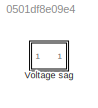
MODEL slx_0501df8e09e4
KIND model
CONFIG AbsTol = auto
CONFIG EnableMultiTasking = off
CONFIG FixedStep = auto
CONFIG MaxStep = auto
CONFIG MinStep = auto
CONFIG RelTol = 1e-3
CONFIG SampleTimeConstraint = Unconstrained
CONFIG SolverName = VariableStepAuto
CONFIG StartTime = 0.0
CONFIG StopTime = 10.0
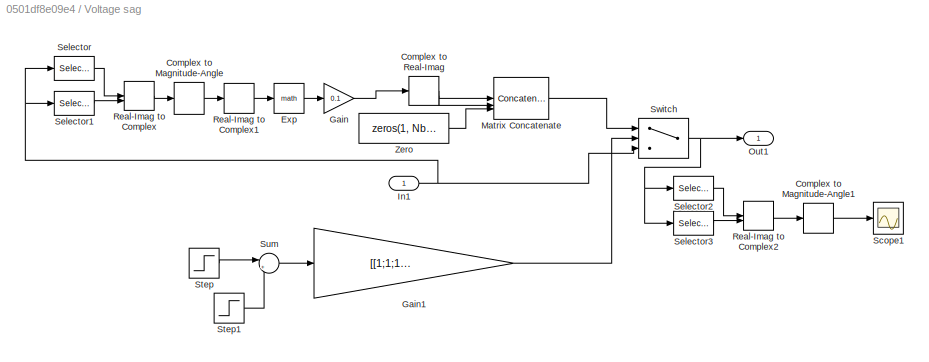
BLOCK [SubSystem] Voltage sag
BLOCK [ComplexToMagnitudeAngle] Voltage sag/Complex to Magnitude-Angle
  Output = Angle
BLOCK [ComplexToMagnitudeAngle] Voltage sag/Complex to Magnitude-Angle1
  Output = Magnitude
BLOCK [ComplexToRealImag] Voltage sag/Complex to Real-Imag
BLOCK [Math] Voltage sag/Exp
BLOCK [Gain] Voltage sag/Gain
  Gain = 0.1
BLOCK [Gain] Voltage sag/Gain1
  Gain = [[1;1;1] zeros(3, Nbuses-1)]
BLOCK [Inport] Voltage sag/In1
BLOCK [Concatenate] Voltage sag/Matrix Concatenate
  Mode = Multidimensional array
  NumInputs = 3
BLOCK [Outport] Voltage sag/Out1
BLOCK [RealImagToComplex] Voltage sag/Real-Imag to Complex
BLOCK [RealImagToComplex] Voltage sag/Real-Imag to Complex1
  Input = Imag
BLOCK [RealImagToComplex] Voltage sag/Real-Imag to Complex2
BLOCK [Scope] Voltage sag/Scope1
  ActiveDisplayYMaximum = 1
  ActiveDisplayYMinimum = -1
  DataLoggingVariableName = ScopeData2
  Floating = off
  GraphicalSettings = {"Style":{"BackgroundColor":[0.12941176470588237,0.12941176470588237,0.12941176470588237],"AxesColor":[0.07058823529411765,0.07058823529411765,0.07058823529411765],"LabelsColor":[0.8509803921568627,0.8509803921568627,0.8509803921568627],"PreserveColors":false,"Visible":[true,true,true,true,true],"LineStyle":["-","-","-","-","-"],"LineWidth":[1.5,1.5,1.5,1.5,1.5],"BarWidth":[0.9,0.9,0.9,0.9,0.9],"L...<+2575ch>
  LayoutDimensionsString = [1 1]
  MultipleDisplayCache = [{"MaxYLimMag":1,"MaxYLimReal":1,"MinYLimMag":0,"MinYLimReal":-1,"PlotAsMagnitudePhase":false,"ShowGrid":true,"ShowLegend":false,"Title":"%<SignalLabel>","YLabel":""}]
  NumInputPorts = 1
  ScopeFrameLocation = window
  WasSavedAsWebScope = on
  WindowPosition = [598.000000,209.000000,560.000000,420.000000,]
BLOCK [Selector] Voltage sag/Selector
  IndexOptions = Index vector (dialog),Select all
  Indices = 1,1
  InputPortWidth = 3
  NumberOfDimensions = 2
  OutputSizes = 1,1
BLOCK [Selector] Voltage sag/Selector1
  IndexOptions = Index vector (dialog),Select all
  Indices = 2,1
  InputPortWidth = 3
  NumberOfDimensions = 2
  OutputSizes = 1,1
BLOCK [Selector] Voltage sag/Selector2
  IndexOptions = Index vector (dialog),Select all
  Indices = 1,1
  InputPortWidth = 3
  NumberOfDimensions = 2
  OutputSizes = 1,1
BLOCK [Selector] Voltage sag/Selector3
  IndexOptions = Index vector (dialog),Select all
  Indices = 2,1
  InputPortWidth = 3
  NumberOfDimensions = 2
  OutputSizes = 1,1
BLOCK [Step] Voltage sag/Step
  SampleTime = 0
  VectorParams1D = off
BLOCK [Step] Voltage sag/Step1
  After = -1
  SampleTime = 0
  Time = 1.05
  VectorParams1D = off
BLOCK [Sum] Voltage sag/Sum
  Inputs = |++
BLOCK [Switch] Voltage sag/Switch
  Criteria = u2 > Threshold
  InputSameDT = off
  SaturateOnIntegerOverflow = off
BLOCK [Constant] Voltage sag/Zero
  OutDataTypeStr = Inherit: Inherit via back propagation
  Value = zeros(1, Nbuses)
  VectorParams1D = off
LINE Voltage sag/Complex to Magnitude-Angle1:1 -> Voltage sag/Scope1:1
LINE Voltage sag/Complex to Magnitude-Angle:1 -> Voltage sag/Real-Imag to Complex1:1
LINE Voltage sag/Complex to Real-Imag:1 -> Voltage sag/Matrix Concatenate:1
LINE Voltage sag/Complex to Real-Imag:2 -> Voltage sag/Matrix Concatenate:2
LINE Voltage sag/Exp:1 -> Voltage sag/Gain:1
LINE Voltage sag/Gain1:1 -> Voltage sag/Switch:2
LINE Voltage sag/Gain:1 -> Voltage sag/Complex to Real-Imag:1
NET Voltage sag/In1:1 -> Voltage sag/Selector1:1, Voltage sag/Selector:1, Voltage sag/Switch:3
LINE Voltage sag/Matrix Concatenate:1 -> Voltage sag/Switch:1
LINE Voltage sag/Real-Imag to Complex1:1 -> Voltage sag/Exp:1
LINE Voltage sag/Real-Imag to Complex2:1 -> Voltage sag/Complex to Magnitude-Angle1:1
LINE Voltage sag/Real-Imag to Complex:1 -> Voltage sag/Complex to Magnitude-Angle:1
LINE Voltage sag/Selector1:1 -> Voltage sag/Real-Imag to Complex:2
LINE Voltage sag/Selector2:1 -> Voltage sag/Real-Imag to Complex2:1
LINE Voltage sag/Selector3:1 -> Voltage sag/Real-Imag to Complex2:2
LINE Voltage sag/Selector:1 -> Voltage sag/Real-Imag to Complex:1
LINE Voltage sag/Step1:1 -> Voltage sag/Sum:2
LINE Voltage sag/Step:1 -> Voltage sag/Sum:1
LINE Voltage sag/Sum:1 -> Voltage sag/Gain1:1
NET Voltage sag/Switch:1 -> Voltage sag/Out1:1, Voltage sag/Selector2:1, Voltage sag/Selector3:1
LINE Voltage sag/Zero:1 -> Voltage sag/Matrix Concatenate:3
note: NET lines group one-source signal fan-out (src -> all destinations, sorted); 1:1 wires keep LINE
